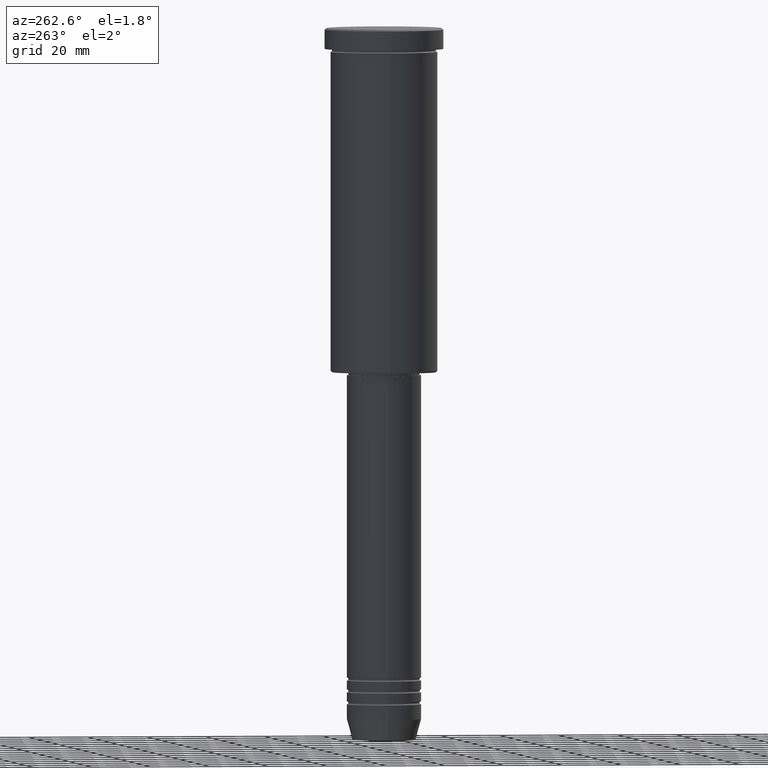
[diagram: clean part render]
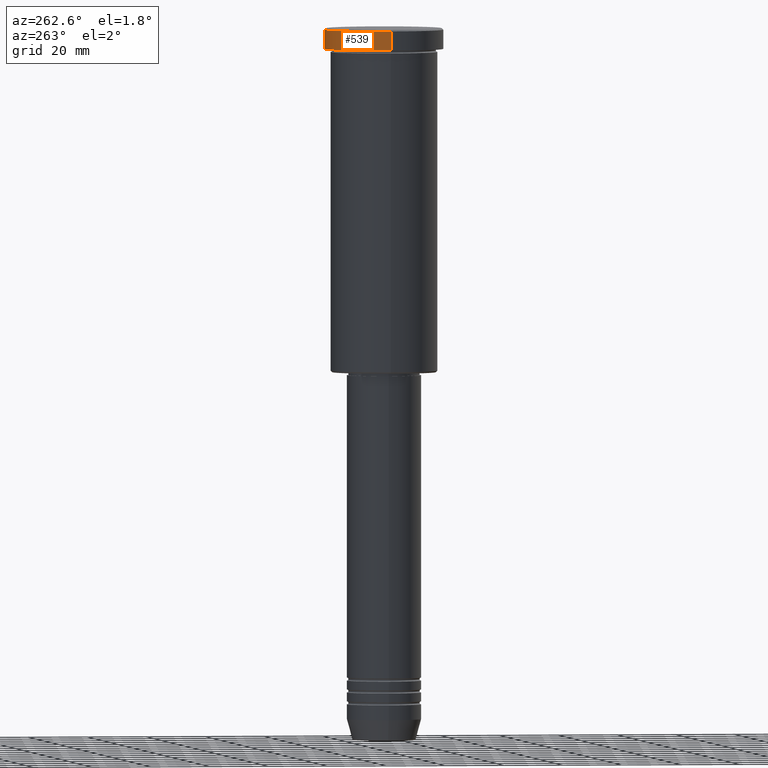
[diagram: same view with one face highlighted and labeled with its STEP entity id]
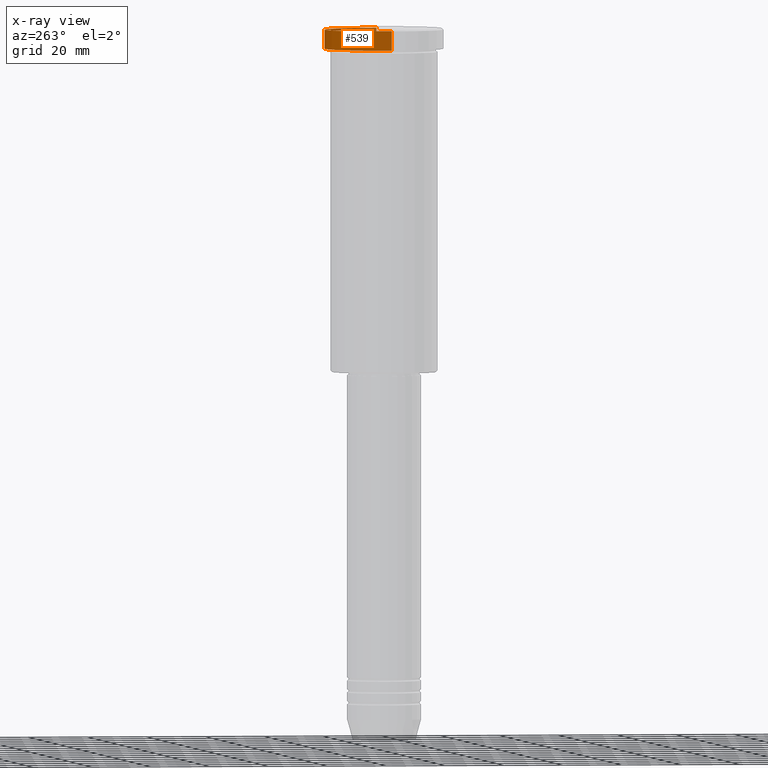
[diagram: x-ray of the same camera — body ghosted, the highlighted face saturated]
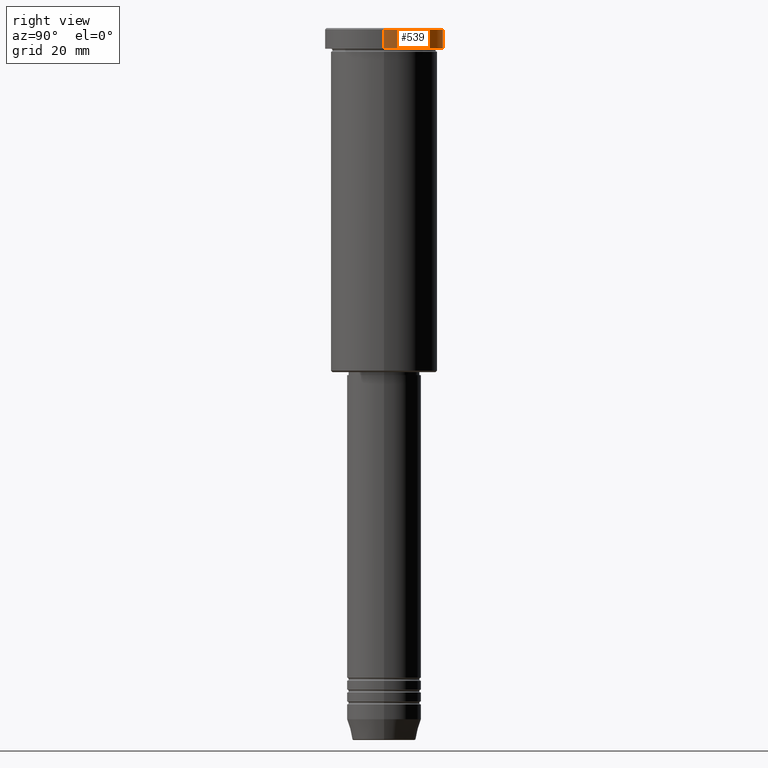
[diagram: same view with one face highlighted and labeled with its STEP entity id]
A machine part, auxiliary view. The second image highlights one B-rep face of the part: STEP entity #539.
The next image is the same camera in x-ray: the body ghosted, the highlighted face saturated — about 6% of this face is hidden behind the body in this view.
A second angle (right view) of the same face is appended — the face is thin or edge-on in the first view.
In plain terms, the highlighted cylindrical surface (partial cylindrical patch) has radius 20 mm, axis along (-0, -0, 1).
Its self-contained STEP definition (entity closure, byte-faithful):
#40 = CARTESIAN_POINT ( 'NONE',  ( 20.00000000000000000, 0.000000000000000000, 0.000000000000000000 ) ) ;
#62 = AXIS2_PLACEMENT_3D ( 'NONE', #634, #817, #272 ) ;
#109 = DIRECTION ( 'NONE',  ( 0.000000000000000000, 0.000000000000000000, -1.000000000000000000 ) ) ;
#124 = DIRECTION ( 'NONE',  ( 1.000000000000000000, 0.000000000000000000, 0.000000000000000000 ) ) ;
#158 = CARTESIAN_POINT ( 'NONE',  ( 20.00000000000000000, 0.000000000000000000, -0.4999999999999692468 ) ) ;
#177 = CYLINDRICAL_SURFACE ( 'NONE', #62, 20.00000000000000000 ) ;
#189 = VECTOR ( 'NONE', #751, 1000.000000000000000 ) ;
#191 = AXIS2_PLACEMENT_3D ( 'NONE', #1047, #497, #227 ) ;
#198 = EDGE_CURVE ( 'NONE', #340, #461, #487, .T. ) ;
#227 = DIRECTION ( 'NONE',  ( 1.000000000000000000, 0.000000000000000000, 0.000000000000000000 ) ) ;
#264 = CARTESIAN_POINT ( 'NONE',  ( -20.00000000000000000, 2.449293598294706513E-15, -6.999999999999995559 ) ) ;
#272 = DIRECTION ( 'NONE',  ( 1.000000000000000000, 0.000000000000000000, 0.000000000000000000 ) ) ;
#299 = LINE ( 'NONE', #1037, #189 ) ;
#323 = AXIS2_PLACEMENT_3D ( 'NONE', #565, #109, #124 ) ;
#340 = VERTEX_POINT ( 'NONE', #863 ) ;
#347 = ORIENTED_EDGE ( 'NONE', *, *, #198, .F. ) ;
#370 = ORIENTED_EDGE ( 'NONE', *, *, #697, .T. ) ;
#406 = CARTESIAN_POINT ( 'NONE',  ( -20.00000000000000000, 2.449293598294706513E-15, -0.4999999999999692468 ) ) ;
#461 = VERTEX_POINT ( 'NONE', #158 ) ;
#487 = LINE ( 'NONE', #40, #1070 ) ;
#497 = DIRECTION ( 'NONE',  ( -0.000000000000000000, -0.000000000000000000, 1.000000000000000000 ) ) ;
#539 = ADVANCED_FACE ( 'NONE', ( #627 ), #177, .T. ) ;
#565 = CARTESIAN_POINT ( 'NONE',  ( 0.000000000000000000, 0.000000000000000000, -0.4999999999999692468 ) ) ;
#574 = EDGE_LOOP ( 'NONE', ( #979, #832, #370, #347 ) ) ;
#586 = VERTEX_POINT ( 'NONE', #264 ) ;
#627 = FACE_OUTER_BOUND ( 'NONE', #574, .T. ) ;
#634 = CARTESIAN_POINT ( 'NONE',  ( 0.000000000000000000, 0.000000000000000000, 0.000000000000000000 ) ) ;
#696 = EDGE_CURVE ( 'NONE', #586, #750, #299, .T. ) ;
#697 = EDGE_CURVE ( 'NONE', #750, #461, #867, .T. ) ;
#750 = VERTEX_POINT ( 'NONE', #406 ) ;
#751 = DIRECTION ( 'NONE',  ( -0.000000000000000000, -0.000000000000000000, 1.000000000000000000 ) ) ;
#784 = EDGE_CURVE ( 'NONE', #340, #586, #1110, .T. ) ;
#817 = DIRECTION ( 'NONE',  ( -0.000000000000000000, -0.000000000000000000, 1.000000000000000000 ) ) ;
#832 = ORIENTED_EDGE ( 'NONE', *, *, #696, .T. ) ;
#863 = CARTESIAN_POINT ( 'NONE',  ( 20.00000000000000000, 0.000000000000000000, -6.999999999999995559 ) ) ;
#867 = CIRCLE ( 'NONE', #323, 20.00000000000000000 ) ;
#950 = DIRECTION ( 'NONE',  ( -0.000000000000000000, -0.000000000000000000, 1.000000000000000000 ) ) ;
#979 = ORIENTED_EDGE ( 'NONE', *, *, #784, .T. ) ;
#1037 = CARTESIAN_POINT ( 'NONE',  ( -20.00000000000000000, 2.449293598294706513E-15, 0.000000000000000000 ) ) ;
#1047 = CARTESIAN_POINT ( 'NONE',  ( 0.000000000000000000, 0.000000000000000000, -6.999999999999995559 ) ) ;
#1070 = VECTOR ( 'NONE', #950, 1000.000000000000000 ) ;
#1110 = CIRCLE ( 'NONE', #191, 20.00000000000000000 ) ;